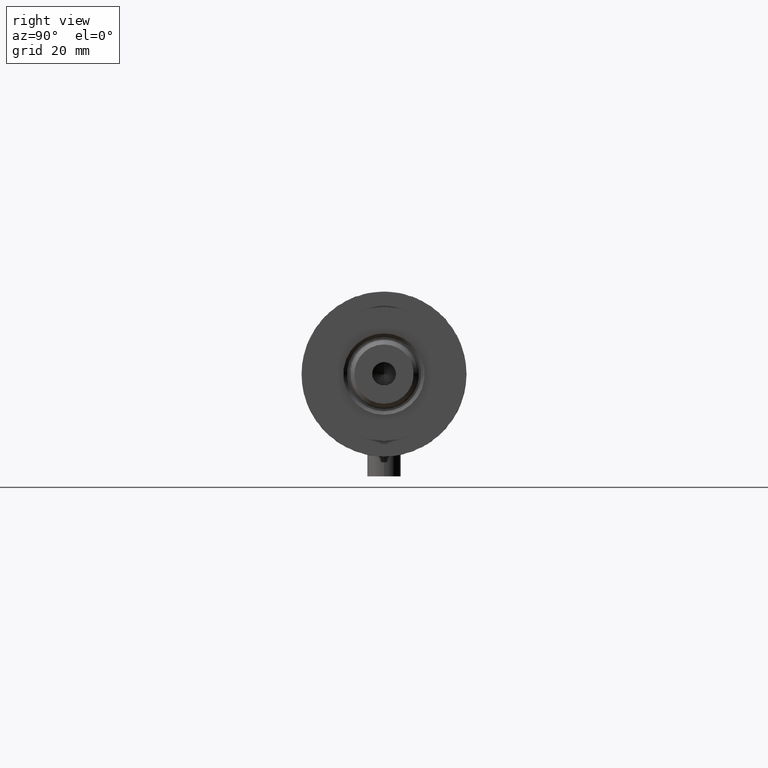
[diagram: clean part render]
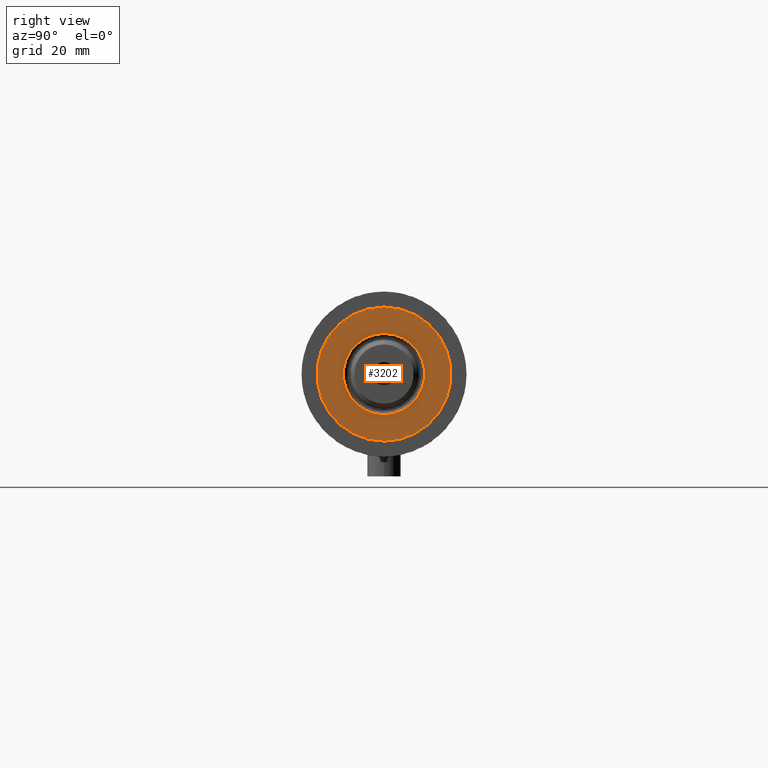
[diagram: same view with one face highlighted and labeled with its STEP entity id]
A machine part, right view. The second image highlights one B-rep face of the part: STEP entity #3202.
In plain terms, the highlighted planar face has unit normal (1, 0, -0).
Its self-contained STEP definition (entity closure, byte-faithful):
#182 = FACE_BOUND ( 'NONE', #3944, .T. ) ;
#429 = EDGE_CURVE ( 'NONE', #2727, #4021, #3453, .T. ) ;
#432 = DIRECTION ( 'NONE',  ( -0.000000000000000000, -0.000000000000000000, -1.000000000000000000 ) ) ;
#438 = AXIS2_PLACEMENT_3D ( 'NONE', #3650, #1601, #2971 ) ;
#471 = DIRECTION ( 'NONE',  ( 1.000000000000000000, 0.000000000000000000, 0.000000000000000000 ) ) ;
#583 = CIRCLE ( 'NONE', #2113, 24.00000000000000355 ) ;
#625 = ORIENTED_EDGE ( 'NONE', *, *, #429, .T. ) ;
#650 = CIRCLE ( 'NONE', #3028, 14.54999999999997939 ) ;
#736 = DIRECTION ( 'NONE',  ( -0.000000000000000000, -0.000000000000000000, -1.000000000000000000 ) ) ;
#861 = CARTESIAN_POINT ( 'NONE',  ( 0.000000000000000000, 0.000000000000000000, 41.00000000000000000 ) ) ;
#1251 = DIRECTION ( 'NONE',  ( 0.000000000000000000, 0.000000000000000000, 1.000000000000000000 ) ) ;
#1275 = ORIENTED_EDGE ( 'NONE', *, *, #2248, .T. ) ;
#1428 = EDGE_LOOP ( 'NONE', ( #1275, #4143 ) ) ;
#1546 = CARTESIAN_POINT ( 'NONE',  ( 0.000000000000000000, 0.000000000000000000, 41.00000000000000000 ) ) ;
#1601 = DIRECTION ( 'NONE',  ( 0.000000000000000000, 0.000000000000000000, 1.000000000000000000 ) ) ;
#1612 = EDGE_CURVE ( 'NONE', #4021, #2727, #650, .T. ) ;
#1714 = CARTESIAN_POINT ( 'NONE',  ( -24.00000000000000355, 0.000000000000000000, 41.00000000000000000 ) ) ;
#1871 = AXIS2_PLACEMENT_3D ( 'NONE', #3122, #736, #2455 ) ;
#1956 = FACE_OUTER_BOUND ( 'NONE', #1428, .T. ) ;
#1992 = CARTESIAN_POINT ( 'NONE',  ( 0.000000000000000000, 0.000000000000000000, 41.00000000000000000 ) ) ;
#2113 = AXIS2_PLACEMENT_3D ( 'NONE', #1992, #2976, #3283 ) ;
#2122 = VERTEX_POINT ( 'NONE', #3239 ) ;
#2248 = EDGE_CURVE ( 'NONE', #4310, #2122, #583, .T. ) ;
#2287 = ORIENTED_EDGE ( 'NONE', *, *, #1612, .T. ) ;
#2455 = DIRECTION ( 'NONE',  ( 1.000000000000000000, 0.000000000000000000, 0.000000000000000000 ) ) ;
#2563 = CARTESIAN_POINT ( 'NONE',  ( 14.54999999999997939, 0.000000000000000000, 41.00000000000000000 ) ) ;
#2641 = DIRECTION ( 'NONE',  ( 1.000000000000000000, 0.000000000000000000, -0.000000000000000000 ) ) ;
#2727 = VERTEX_POINT ( 'NONE', #2563 ) ;
#2971 = DIRECTION ( 'NONE',  ( 1.000000000000000000, 0.000000000000000000, 0.000000000000000000 ) ) ;
#2976 = DIRECTION ( 'NONE',  ( 0.000000000000000000, 0.000000000000000000, 1.000000000000000000 ) ) ;
#3028 = AXIS2_PLACEMENT_3D ( 'NONE', #861, #432, #471 ) ;
#3122 = CARTESIAN_POINT ( 'NONE',  ( 0.000000000000000000, 0.000000000000000000, 41.00000000000000000 ) ) ;
#3171 = CIRCLE ( 'NONE', #438, 24.00000000000000355 ) ;
#3202 = ADVANCED_FACE ( 'NONE', ( #182, #1956 ), #4025, .T. ) ;
#3239 = CARTESIAN_POINT ( 'NONE',  ( 24.00000000000000355, 2.939152317953648289E-15, 41.00000000000000000 ) ) ;
#3283 = DIRECTION ( 'NONE',  ( 1.000000000000000000, 0.000000000000000000, 0.000000000000000000 ) ) ;
#3429 = CARTESIAN_POINT ( 'NONE',  ( -14.54999999999997939, 1.781861092759396721E-15, 41.00000000000000000 ) ) ;
#3453 = CIRCLE ( 'NONE', #1871, 14.54999999999997939 ) ;
#3650 = CARTESIAN_POINT ( 'NONE',  ( 0.000000000000000000, 0.000000000000000000, 41.00000000000000000 ) ) ;
#3796 = EDGE_CURVE ( 'NONE', #2122, #4310, #3171, .T. ) ;
#3944 = EDGE_LOOP ( 'NONE', ( #625, #2287 ) ) ;
#4021 = VERTEX_POINT ( 'NONE', #3429 ) ;
#4025 = PLANE ( 'NONE',  #4407 ) ;
#4143 = ORIENTED_EDGE ( 'NONE', *, *, #3796, .T. ) ;
#4310 = VERTEX_POINT ( 'NONE', #1714 ) ;
#4407 = AXIS2_PLACEMENT_3D ( 'NONE', #1546, #1251, #2641 ) ;